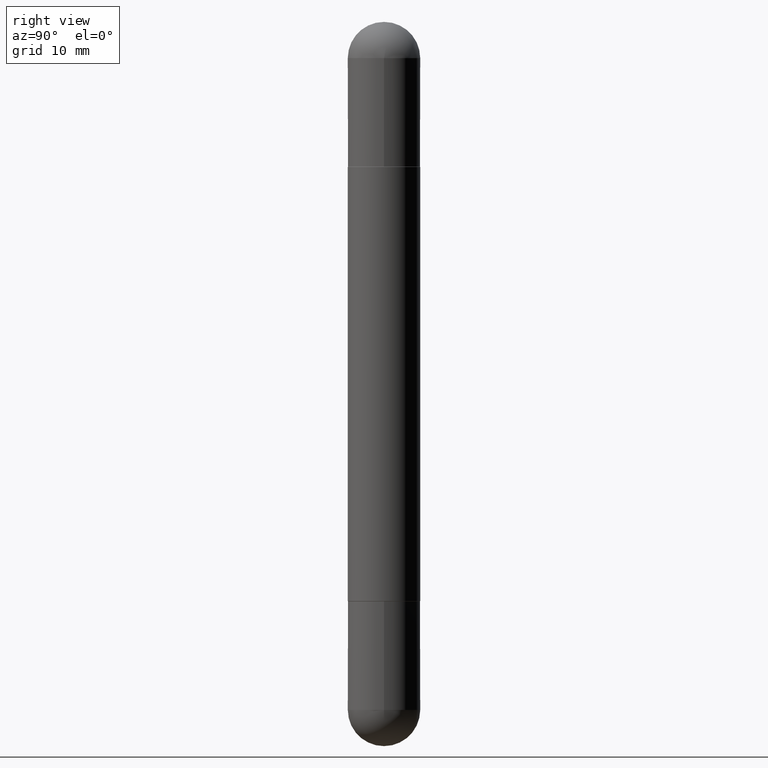
[diagram: clean part render]
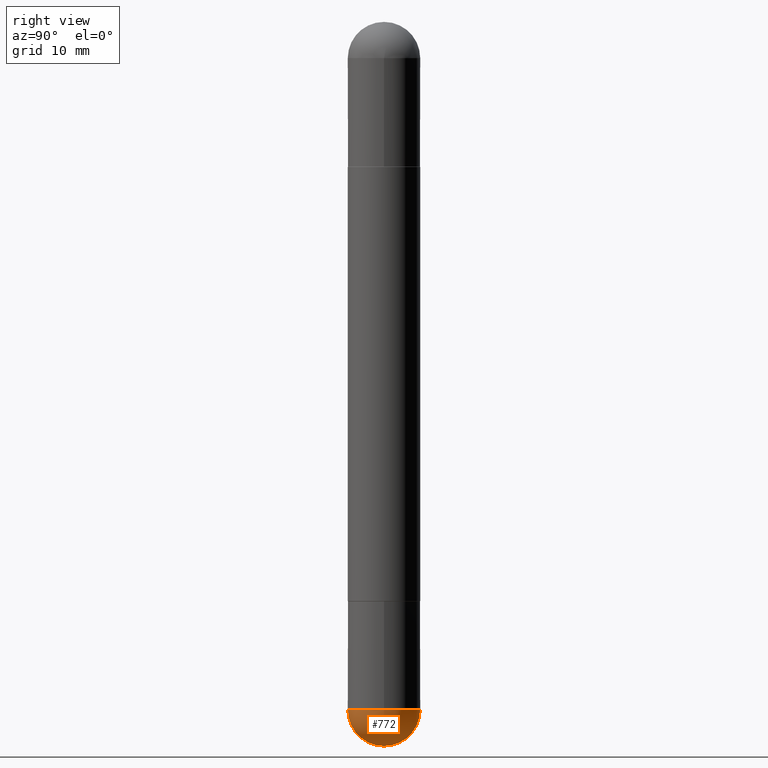
[diagram: same view with one face highlighted and labeled with its STEP entity id]
A machine part, right view. The second image highlights one B-rep face of the part: STEP entity #772.
In plain terms, the highlighted spherical surface has radius 3.175 mm.
Its self-contained STEP definition (entity closure, byte-faithful):
#34 = CARTESIAN_POINT ( 'NONE',  ( 5.476868636775814291E-29, -8.766450547892521992E-15, -2.375000000000000000 ) ) ;
#36 = DIRECTION ( 'NONE',  ( -1.000000000000000000, 6.982962677686265922E-15, -4.883557194083112901E-29 ) ) ;
#43 = AXIS2_PLACEMENT_3D ( 'NONE', #751, #330, #651 ) ;
#77 = ORIENTED_EDGE ( 'NONE', *, *, #543, .F. ) ;
#89 = CARTESIAN_POINT ( 'NONE',  ( 5.807988414689700538E-29, -8.292268179752471696E-15, -2.375000000000000000 ) ) ;
#112 = VERTEX_POINT ( 'NONE', #489 ) ;
#129 = AXIS2_PLACEMENT_3D ( 'NONE', #806, #753, #195 ) ;
#147 = EDGE_CURVE ( 'NONE', #421, #112, #646, .T. ) ;
#159 = EDGE_CURVE ( 'NONE', #290, #439, #473, .T. ) ;
#183 = EDGE_LOOP ( 'NONE', ( #77, #511, #400, #816 ) ) ;
#195 = DIRECTION ( 'NONE',  ( -7.105427357601000281E-15, -1.000000000000000000, 0.000000000000000000 ) ) ;
#267 = AXIS2_PLACEMENT_3D ( 'NONE', #89, #616, #347 ) ;
#290 = VERTEX_POINT ( 'NONE', #707 ) ;
#314 = AXIS2_PLACEMENT_3D ( 'NONE', #618, #432, #793 ) ;
#330 = DIRECTION ( 'NONE',  ( -2.445468806185136597E-29, 3.491481338843145583E-15, 1.000000000000000000 ) ) ;
#344 = CIRCLE ( 'NONE', #129, 0.1250000000000001943 ) ;
#347 = DIRECTION ( 'NONE',  ( 1.000000000000000000, -6.982962677686270655E-15, 0.000000000000000000 ) ) ;
#400 = ORIENTED_EDGE ( 'NONE', *, *, #744, .F. ) ;
#421 = VERTEX_POINT ( 'NONE', #581 ) ;
#432 = DIRECTION ( 'NONE',  ( 1.000000000000000000, -6.982962677686265922E-15, 4.883557194083112340E-29 ) ) ;
#439 = VERTEX_POINT ( 'NONE', #817 ) ;
#473 = CIRCLE ( 'NONE', #43, 0.1250000000000000000 ) ;
#489 = CARTESIAN_POINT ( 'NONE',  ( 8.728703347108403340E-16, 0.1249999999999915623, -2.375000000000000888 ) ) ;
#511 = ORIENTED_EDGE ( 'NONE', *, *, #147, .T. ) ;
#543 = EDGE_CURVE ( 'NONE', #421, #290, #344, .T. ) ;
#556 = AXIS2_PLACEMENT_3D ( 'NONE', #34, #36, #658 ) ;
#581 = CARTESIAN_POINT ( 'NONE',  ( 5.787897026856327965E-29, -9.195231672753244292E-15, -2.500000000000000444 ) ) ;
#616 = DIRECTION ( 'NONE',  ( -2.445468806185136597E-29, 3.491481338843145583E-15, 1.000000000000000000 ) ) ;
#618 = CARTESIAN_POINT ( 'NONE',  ( 5.476868636775814291E-29, -8.766450547892521992E-15, -2.375000000000000000 ) ) ;
#646 = CIRCLE ( 'NONE', #314, 0.1250000000000001943 ) ;
#651 = DIRECTION ( 'NONE',  ( 1.000000000000000000, -6.982962677686270655E-15, 0.000000000000000000 ) ) ;
#658 = DIRECTION ( 'NONE',  ( 6.982962677686265922E-15, 1.000000000000000000, -4.370956789862814839E-15 ) ) ;
#663 = FACE_OUTER_BOUND ( 'NONE', #183, .T. ) ;
#703 = CIRCLE ( 'NONE', #267, 0.1250000000000000000 ) ;
#707 = CARTESIAN_POINT ( 'NONE',  ( -8.881784197000694204E-16, -0.1250000000000086320, -2.374999999999999556 ) ) ;
#726 = SPHERICAL_SURFACE ( 'NONE', #556, 0.1250000000000001943 ) ;
#744 = EDGE_CURVE ( 'NONE', #439, #112, #703, .T. ) ;
#751 = CARTESIAN_POINT ( 'NONE',  ( 5.807988414689700538E-29, -8.292268179752471696E-15, -2.375000000000000000 ) ) ;
#753 = DIRECTION ( 'NONE',  ( -1.000000000000000000, 7.105427357601001070E-15, -4.926315508542082329E-29 ) ) ;
#772 = ADVANCED_FACE ( 'NONE', ( #663 ), #726, .T. ) ;
#793 = DIRECTION ( 'NONE',  ( 6.982962677686265133E-15, 1.000000000000000000, 0.000000000000000000 ) ) ;
#806 = CARTESIAN_POINT ( 'NONE',  ( 5.476868636775814291E-29, -8.766450547892521992E-15, -2.375000000000000000 ) ) ;
#816 = ORIENTED_EDGE ( 'NONE', *, *, #159, .F. ) ;
#817 = CARTESIAN_POINT ( 'NONE',  ( 0.1250000000000000000, -8.510485763430165164E-15, -2.375000000000000000 ) ) ;